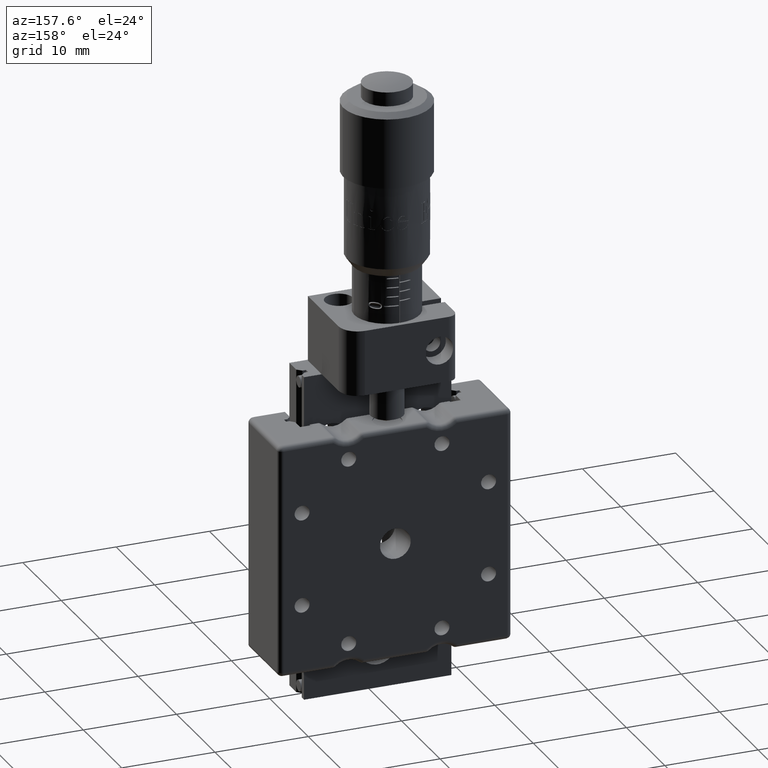
[diagram: clean part render]
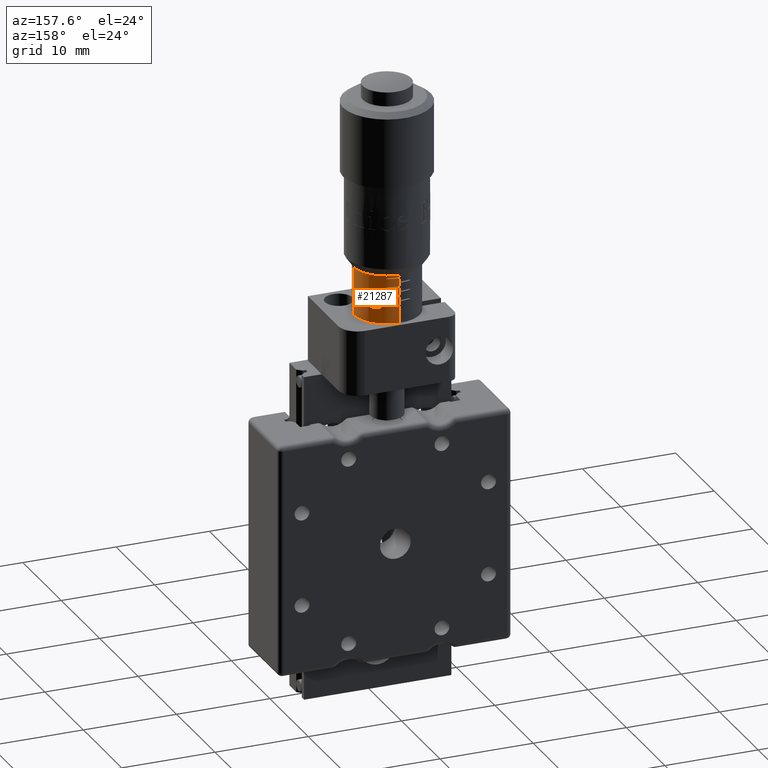
[diagram: same view with one face highlighted and labeled with its STEP entity id]
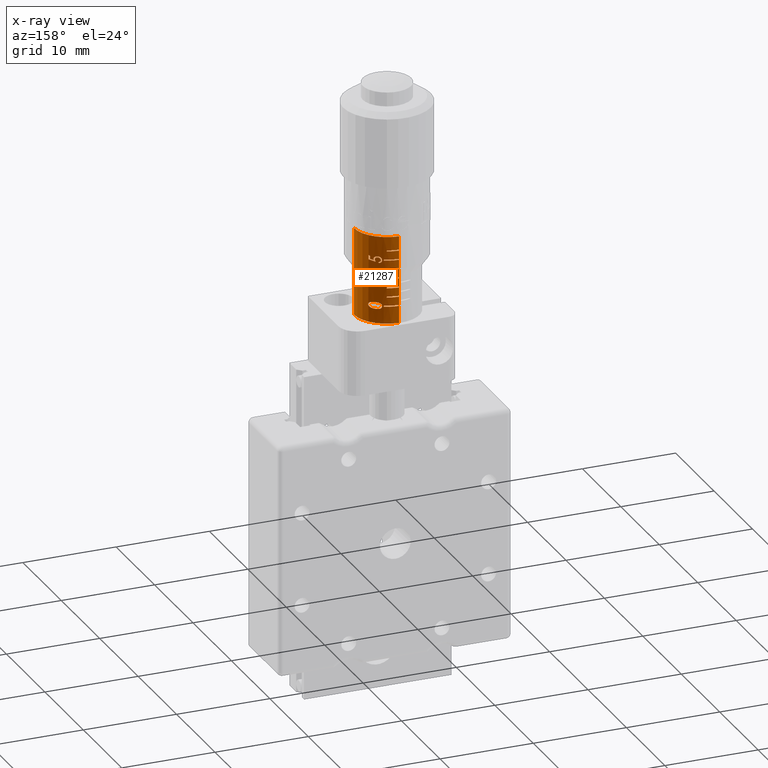
[diagram: x-ray of the same camera — body ghosted, the highlighted face saturated]
A machine part, auxiliary view. The second image highlights one B-rep face of the part: STEP entity #21287.
The next image is the same camera in x-ray: the body ghosted, the highlighted face saturated — about 0% of this face is hidden behind the body in this view.
In plain terms, the highlighted cylindrical surface (edge-blend (fillet) strip) has radius 3.5 mm, axis along (0, 0, 1).
Its self-contained STEP definition (entity closure, byte-faithful):
#167 = EDGE_CURVE ( 'NONE', #5656, #7955, #11918, .T. ) ;
#280 = CARTESIAN_POINT ( 'NONE',  ( 2.008205794582144800, 9.066676334994877400, 31.16144774018862100 ) ) ;
#293 = ORIENTED_EDGE ( 'NONE', *, *, #16254, .T. ) ;
#440 = CARTESIAN_POINT ( 'NONE',  ( 2.306688131590320700, 8.832335439031249200, 26.75982905982906200 ) ) ;
#451 = CARTESIAN_POINT ( 'NONE',  ( 0.1522948242705942400, 9.696685042508081100, 33.90000000000001300 ) ) ;
#482 = CARTESIAN_POINT ( 'NONE',  ( 3.498503860052543300, 6.097673360274848500, 33.90000000000001300 ) ) ;
#552 = CARTESIAN_POINT ( 'NONE',  ( 0.1522948242706004300, 9.696685042508102400, 89.54102306920762500 ) ) ;
#578 = CARTESIAN_POINT ( 'NONE',  ( 2.846237722388081700, 8.236892443811086700, 26.39454293536325100 ) ) ;
#715 = ORIENTED_EDGE ( 'NONE', *, *, #3658, .T. ) ;
#727 = LINE ( 'NONE', #32914, #2870 ) ;
#852 = ORIENTED_EDGE ( 'NONE', *, *, #32653, .T. ) ;
#855 = CARTESIAN_POINT ( 'NONE',  ( 2.351094815196509600, 8.792756742246728800, 31.30596485108722900 ) ) ;
#862 = CARTESIAN_POINT ( 'NONE',  ( 1.762029937466577100, 9.224111522327017800, 31.37715845352564900 ) ) ;
#909 = VERTEX_POINT ( 'NONE', #18438 ) ;
#995 = CARTESIAN_POINT ( 'NONE',  ( 0.1522948242706013400, 9.696685042508081100, 30.45000000000003100 ) ) ;
#1071 = DIRECTION ( 'NONE',  ( 0.02923618277858830400, 0.9995725314435851500, 0.0000000000000000000 ) ) ;
#1073 = CARTESIAN_POINT ( 'NONE',  ( 1.345043838974543200, 9.431231510002961100, 32.45000000000001000 ) ) ;
#1153 = ORIENTED_EDGE ( 'NONE', *, *, #18971, .F. ) ;
#1317 = CARTESIAN_POINT ( 'NONE',  ( 1.762029937466576200, 9.224111522327012500, 26.39454293536325100 ) ) ;
#1495 = ORIENTED_EDGE ( 'NONE', *, *, #20345, .F. ) ;
#1505 = CARTESIAN_POINT ( 'NONE',  ( 2.737309494181643800, 8.382028535163391000, 26.14599216129492700 ) ) ;
#1536 = DIRECTION ( 'NONE',  ( -5.173820016162127900E-018, -1.793466154370806700E-016, -1.000000000000000000 ) ) ;
#1661 = CARTESIAN_POINT ( 'NONE',  ( 1.868729709774607800, 9.159754866691738300, 26.14892436932203900 ) ) ;
#1784 = CARTESIAN_POINT ( 'NONE',  ( 1.762623632399764200, 9.223765599817781400, 26.35881784779101300 ) ) ;
#1807 = VERTEX_POINT ( 'NONE', #451 ) ;
#1838 = EDGE_CURVE ( 'NONE', #16243, #2463, #7617, .T. ) ;
#1872 = CARTESIAN_POINT ( 'NONE',  ( 1.345043838974542700, 9.431231510002961100, 27.45000000000001000 ) ) ;
#2005 = B_SPLINE_CURVE_WITH_KNOTS ( 'NONE', 3,
 ( #34825, #35073, #24219, #18918, #13218, #18809, #18569, #21501, #5252, #26604 ),
 .UNSPECIFIED., .F., .F.,
 ( 4, 2, 2, 2, 4 ),
 ( 0.0000000000000000000, 0.0001306919243144162100, 0.0002613838486288417500, 0.0003920757729432673100, 0.0005227676972576933600 ),
 .UNSPECIFIED. ) ;
#2123 = DIRECTION ( 'NONE',  ( 5.173820016162127900E-018, 1.793466154370806700E-016, 1.000000000000000000 ) ) ;
#2255 = CIRCLE ( 'NONE', #26193, 3.500000000000004900 ) ;
#2277 = DIRECTION ( 'NONE',  ( -0.02923618277858830100, -0.9995725314435851500, 0.0000000000000000000 ) ) ;
#2337 = VECTOR ( 'NONE', #16472, 1000.000000000000000 ) ;
#2366 = CARTESIAN_POINT ( 'NONE',  ( 2.313310693667438600, 8.826678226303396700, 31.56481136203095200 ) ) ;
#2380 = CARTESIAN_POINT ( 'NONE',  ( 2.539283184762475700, 8.613621745478216200, 26.74952653081618700 ) ) ;
#2408 = EDGE_CURVE ( 'NONE', #7398, #6667, #34402, .T. ) ;
#2463 = VERTEX_POINT ( 'NONE', #9571 ) ;
#2526 = ORIENTED_EDGE ( 'NONE', *, *, #34292, .T. ) ;
#2553 = VERTEX_POINT ( 'NONE', #7283 ) ;
#2683 = DIRECTION ( 'NONE',  ( -1.110223024626043800E-016, -1.762506864451433400E-016, -1.000000000000000000 ) ) ;
#2779 = CARTESIAN_POINT ( 'NONE',  ( -4.147034721753750400E-015, 6.199999999999906900, 28.45000000000001000 ) ) ;
#2838 = ORIENTED_EDGE ( 'NONE', *, *, #11041, .F. ) ;
#2870 = VECTOR ( 'NONE', #29237, 1000.000000000000000 ) ;
#2875 = CARTESIAN_POINT ( 'NONE',  ( 0.1522948242706009300, 9.696685042508081100, 26.35000000000003300 ) ) ;
#2928 = CARTESIAN_POINT ( 'NONE',  ( 1.893914413491665000, 9.143336375437437300, 31.26861012473260700 ) ) ;
#2936 = CARTESIAN_POINT ( 'NONE',  ( 1.929414894435835800, 9.120322698794913300, 31.55890652825006600 ) ) ;
#2953 = ORIENTED_EDGE ( 'NONE', *, *, #18004, .F. ) ;
#2956 = CARTESIAN_POINT ( 'NONE',  ( 2.055076097332675800, 9.033136465857500900, 89.54102306920762500 ) ) ;
#3116 = DIRECTION ( 'NONE',  ( 5.173820016162127900E-018, 1.793466154370806700E-016, 1.000000000000000000 ) ) ;
#3250 = CARTESIAN_POINT ( 'NONE',  ( 2.360013844530338000, 8.784634336540596800, 31.39602697649573300 ) ) ;
#3314 = CARTESIAN_POINT ( 'NONE',  ( 1.767467420193004300, 9.220966171238423200, 26.46527695348951400 ) ) ;
#3383 = CARTESIAN_POINT ( 'NONE',  ( 2.355430167394082700, 8.788812223111165200, 31.33592391192004800 ) ) ;
#3497 = ORIENTED_EDGE ( 'NONE', *, *, #167, .T. ) ;
#3511 = CARTESIAN_POINT ( 'NONE',  ( 1.345043838974543200, 9.431231510002975300, 89.54102306920762500 ) ) ;
#3658 = EDGE_CURVE ( 'NONE', #26829, #26624, #23830, .T. ) ;
#3848 = DIRECTION ( 'NONE',  ( -1.110223024626043800E-016, -1.762506864451433400E-016, -1.000000000000000000 ) ) ;
#3973 = ORIENTED_EDGE ( 'NONE', *, *, #31501, .F. ) ;
#4090 = CARTESIAN_POINT ( 'NONE',  ( 1.767847977080006000, 9.220742250107548400, 26.32368784707362500 ) ) ;
#4289 = CARTESIAN_POINT ( 'NONE',  ( 2.795876853704230700, 8.305730411928768900, 26.21836737688728300 ) ) ;
#4425 = DIRECTION ( 'NONE',  ( 0.9995725314435851500, -0.02923618277858830100, 0.0000000000000000000 ) ) ;
#4611 = CARTESIAN_POINT ( 'NONE',  ( 2.127933603052496500, 8.978830434013483200, 31.74626068376069200 ) ) ;
#4613 = EDGE_CURVE ( 'NONE', #19329, #15594, #20282, .T. ) ;
#4677 = DIRECTION ( 'NONE',  ( 0.02923618277858829100, 0.9995725314435850400, 0.0000000000000000000 ) ) ;
#4810 = VERTEX_POINT ( 'NONE', #26143 ) ;
#4868 = DIRECTION ( 'NONE',  ( 5.173820016162127900E-018, 1.793466154370806700E-016, 1.000000000000000000 ) ) ;
#4963 = CARTESIAN_POINT ( 'NONE',  ( -4.305512932683201800E-015, 6.199999999999913100, 26.35000000000001200 ) ) ;
#4965 = LINE ( 'NONE', #552, #17736 ) ;
#5012 = CARTESIAN_POINT ( 'NONE',  ( 2.243669714953604000, 8.886480041583800100, 31.62655983367568900 ) ) ;
#5024 = CARTESIAN_POINT ( 'NONE',  ( 2.426890766856290700, 8.727003121560372300, 26.75835087921676300 ) ) ;
#5116 = EDGE_CURVE ( 'NONE', #15913, #33192, #8341, .T. ) ;
#5155 = VERTEX_POINT ( 'NONE', #578 ) ;
#5252 = CARTESIAN_POINT ( 'NONE',  ( 2.019792989444887200, 9.058729822384293600, 31.05985077628050200 ) ) ;
#5277 = CARTESIAN_POINT ( 'NONE',  ( -4.034004412724408100E-015, 6.199999999999906900, 29.35000000000000900 ) ) ;
#5289 = CARTESIAN_POINT ( 'NONE',  ( 2.715505673721301700, 8.408173212405907600, 31.34556957799146600 ) ) ;
#5354 = EDGE_CURVE ( 'NONE', #28300, #9019, #27132, .T. ) ;
#5402 = VECTOR ( 'NONE', #18151, 1000.000000000000000 ) ;
#5452 = ORIENTED_EDGE ( 'NONE', *, *, #25304, .F. ) ;
#5474 = ORIENTED_EDGE ( 'NONE', *, *, #27792, .T. ) ;
#5568 = CARTESIAN_POINT ( 'NONE',  ( 1.979913582371617400, 9.086324428457075400, 31.60654412243925300 ) ) ;
#5656 = VERTEX_POINT ( 'NONE', #18176 ) ;
#5685 = CARTESIAN_POINT ( 'NONE',  ( 1.876295494086866100, 9.154631586703812800, 31.46102339906445900 ) ) ;
#5686 = AXIS2_PLACEMENT_3D ( 'NONE', #30208, #3116, #10866 ) ;
#5910 = CARTESIAN_POINT ( 'NONE',  ( 0.1522948242706004300, 9.696685042508102400, 89.54102306920762500 ) ) ;
#5940 = CARTESIAN_POINT ( 'NONE',  ( 1.867480682193309000, 9.160532628995039100, 26.64232556434875600 ) ) ;
#5954 = VERTEX_POINT ( 'NONE', #862 ) ;
#6021 = LINE ( 'NONE', #30709, #20913 ) ;
#6037 = EDGE_CURVE ( 'NONE', #25640, #909, #6893, .T. ) ;
#6169 = CIRCLE ( 'NONE', #20797, 3.500000000000004900 ) ;
#6364 = CARTESIAN_POINT ( 'NONE',  ( 2.317583660354148200, 8.822784831037996200, 31.19076574097502100 ) ) ;
#6368 = VERTEX_POINT ( 'NONE', #11218 ) ;
#6374 = CARTESIAN_POINT ( 'NONE',  ( 2.465665257404041600, 8.684048074903190100, 31.41319945245727800 ) ) ;
#6513 = ORIENTED_EDGE ( 'NONE', *, *, #21438, .T. ) ;
#6647 = CARTESIAN_POINT ( 'NONE',  ( 0.1522948242706004300, 9.696685042508102400, 89.54102306920762500 ) ) ;
#6667 = VERTEX_POINT ( 'NONE', #1872 ) ;
#6697 = CARTESIAN_POINT ( 'NONE',  ( 1.345043838974543200, 9.431231510002961100, 30.45000000000000600 ) ) ;
#6739 = CARTESIAN_POINT ( 'NONE',  ( -3.904991722065147200E-015, 6.199999999999914000, 30.45000000000000600 ) ) ;
#6745 = EDGE_CURVE ( 'NONE', #1807, #25729, #34066, .T. ) ;
#6787 = CARTESIAN_POINT ( 'NONE',  ( 2.846237722388081700, 8.236892443811086700, 26.39454293536325100 ) ) ;
#6893 = CIRCLE ( 'NONE', #11053, 3.500000000000005800 ) ;
#6922 = EDGE_CURVE ( 'NONE', #25040, #15913, #28545, .T. ) ;
#6936 = CARTESIAN_POINT ( 'NONE',  ( 1.807386813534474800, 9.197320104032302300, 26.22742523779401900 ) ) ;
#7117 = CARTESIAN_POINT ( 'NONE',  ( 0.1522948242706004300, 9.696685042508102400, 89.54102306920762500 ) ) ;
#7153 = VERTEX_POINT ( 'NONE', #10960 ) ;
#7279 = CIRCLE ( 'NONE', #7680, 3.500000000000004400 ) ;
#7283 = CARTESIAN_POINT ( 'NONE',  ( 2.055076097332674900, 9.033136465857488400, 31.05427350427351400 ) ) ;
#7287 = B_SPLINE_CURVE_WITH_KNOTS ( 'NONE', 3,
 ( #20794, #23035, #28757, #20687, #1505, #4289, #31465, #31124, #17973, #6787 ),
 .UNSPECIFIED., .F., .F.,
 ( 4, 2, 2, 2, 4 ),
 ( 0.0000000000000000000, 0.0004773617258230343100, 0.0007160425887345500000, 0.0008353830201903043800, 0.0009547234516460588600 ),
 .UNSPECIFIED. ) ;
#7292 = CARTESIAN_POINT ( 'NONE',  ( 2.032861209674099400, 9.049896797850680100, 26.06759743981744700 ) ) ;
#7301 = AXIS2_PLACEMENT_3D ( 'NONE', #30196, #30317, #14299 ) ;
#7370 = DIRECTION ( 'NONE',  ( -1.110223024626043800E-016, -1.762506864451433400E-016, -1.000000000000000000 ) ) ;
#7398 = VERTEX_POINT ( 'NONE', #19886 ) ;
#7410 = VECTOR ( 'NONE', #11177, 1000.000000000000000 ) ;
#7505 = DIRECTION ( 'NONE',  ( 1.110223024626043800E-016, 1.762506864451433400E-016, 1.000000000000000000 ) ) ;
#7550 = LINE ( 'NONE', #21571, #21545 ) ;
#7602 = CARTESIAN_POINT ( 'NONE',  ( 1.345043838974543200, 9.431231510002975300, 89.54102306920762500 ) ) ;
#7617 = CIRCLE ( 'NONE', #31985, 3.500000000000004400 ) ;
#7680 = AXIS2_PLACEMENT_3D ( 'NONE', #33542, #11930, #1071 ) ;
#7818 = ORIENTED_EDGE ( 'NONE', *, *, #33032, .F. ) ;
#7955 = VERTEX_POINT ( 'NONE', #3250 ) ;
#7991 = CARTESIAN_POINT ( 'NONE',  ( 2.306688131590320700, 8.832335439031249200, 26.75982905982906200 ) ) ;
#8000 = ORIENTED_EDGE ( 'NONE', *, *, #30388, .T. ) ;
#8108 = B_SPLINE_CURVE_WITH_KNOTS ( 'NONE', 3,
 ( #22177, #19114, #280, #8299, #27291, #32869, #2928, #21932, #30016, #13765 ),
 .UNSPECIFIED., .F., .F.,
 ( 4, 2, 2, 2, 4 ),
 ( 4.336808689942017700E-019, 8.753349801866785300E-005, 0.0001750669960373352700, 0.0002626004940560023100, 0.0003501339920746693500 ),
 .UNSPECIFIED. ) ;
#8299 = CARTESIAN_POINT ( 'NONE',  ( 1.963902773335874900, 9.097207210383233500, 31.18427857591459000 ) ) ;
#8341 = CIRCLE ( 'NONE', #7301, 3.500000000000004400 ) ;
#8456 = ORIENTED_EDGE ( 'NONE', *, *, #11275, .F. ) ;
#8617 = EDGE_CURVE ( 'NONE', #7153, #9070, #25884, .T. ) ;
#8648 = CIRCLE ( 'NONE', #31678, 3.500000000000004900 ) ;
#8673 = CARTESIAN_POINT ( 'NONE',  ( 1.906983696637403900, 9.134918359177591500, 31.52927582148306500 ) ) ;
#8778 = CARTESIAN_POINT ( 'NONE',  ( 2.306688131590320700, 8.832335439031249200, 26.75982905982906200 ) ) ;
#9019 = VERTEX_POINT ( 'NONE', #20051 ) ;
#9063 = ORIENTED_EDGE ( 'NONE', *, *, #9109, .F. ) ;
#9070 = VERTEX_POINT ( 'NONE', #25343 ) ;
#9109 = EDGE_CURVE ( 'NONE', #19549, #17752, #16570, .T. ) ;
#9377 = DIRECTION ( 'NONE',  ( 0.02923618277858829100, 0.9995725314435850400, 0.0000000000000000000 ) ) ;
#9476 = CARTESIAN_POINT ( 'NONE',  ( 2.463131683399432300, 8.686560702869401900, 31.36978382041966300 ) ) ;
#9571 = CARTESIAN_POINT ( 'NONE',  ( 1.617056453708152200, 9.304050325867837800, 26.45000000000001400 ) ) ;
#9576 = CARTESIAN_POINT ( 'NONE',  ( 1.790318634323290400, 9.207478910856311300, 26.25727847669591600 ) ) ;
#9637 = DIRECTION ( 'NONE',  ( -1.110223024625996400E-016, -1.762506864451433600E-016, -1.000000000000000000 ) ) ;
#9655 = FACE_OUTER_BOUND ( 'NONE', #13573, .T. ) ;
#9687 = CARTESIAN_POINT ( 'NONE',  ( 2.199641014403461300, 8.923310626055608100, 26.04271338868366200 ) ) ;
#9719 = CARTESIAN_POINT ( 'NONE',  ( 2.465665257404041600, 8.684048074903190100, 31.41319945245727800 ) ) ;
#9844 = EDGE_CURVE ( 'NONE', #19553, #17581, #8108, .T. ) ;
#9855 = B_SPLINE_CURVE_WITH_KNOTS ( 'NONE', 3,
 ( #33572, #30827, #25348, #20058, #33693, #9476, #12079, #28474, #31058, #6374 ),
 .UNSPECIFIED., .F., .F.,
 ( 4, 3, 3, 4 ),
 ( 0.0000000000000000000, 6.334014363494424300E-005, 9.563846947640001100E-005, 0.0001283808724055202900 ),
 .UNSPECIFIED. ) ;
#10517 = CARTESIAN_POINT ( 'NONE',  ( 2.445667826079123100, 8.703738980900551400, 31.28853999732907100 ) ) ;
#10613 = CARTESIAN_POINT ( 'NONE',  ( 2.813565998937399100, 8.281899530440554700, 26.54347486382898300 ) ) ;
#10623 = CARTESIAN_POINT ( 'NONE',  ( -3.791961413035804100E-015, 6.199999999999914000, 31.35000000000000900 ) ) ;
#10737 = CARTESIAN_POINT ( 'NONE',  ( 2.796032962983993700, 8.305520093645808900, 26.57240932108801000 ) ) ;
#10791 = CARTESIAN_POINT ( 'NONE',  ( 0.1522948242706004300, 9.696685042508102400, 89.54102306920762500 ) ) ;
#10836 = CARTESIAN_POINT ( 'NONE',  ( 2.269366785933558500, 8.864736246023998200, 31.61023979830280300 ) ) ;
#10866 = DIRECTION ( 'NONE',  ( -0.02923618277858474100, -0.9995725314435851500, 0.0000000000000000000 ) ) ;
#10960 = CARTESIAN_POINT ( 'NONE',  ( 2.715505673721298600, 8.408173212405913000, 31.70555555555556300 ) ) ;
#11005 = DIRECTION ( 'NONE',  ( -5.173820016162127900E-018, -1.793466154370806700E-016, -1.000000000000000000 ) ) ;
#11041 = EDGE_CURVE ( 'NONE', #29853, #20670, #33010, .T. ) ;
#11049 = ORIENTED_EDGE ( 'NONE', *, *, #15679, .F. ) ;
#11053 = AXIS2_PLACEMENT_3D ( 'NONE', #23437, #18134, #4677 ) ;
#11128 = VERTEX_POINT ( 'NONE', #8778 ) ;
#11158 = CARTESIAN_POINT ( 'NONE',  ( 1.869791135084605700, 9.158696112678059700, 31.42178275452874600 ) ) ;
#11177 = DIRECTION ( 'NONE',  ( 1.110223024626043800E-016, 1.762506864451433400E-016, 1.000000000000000000 ) ) ;
#11218 = CARTESIAN_POINT ( 'NONE',  ( 2.820141735865203900, 8.272872545438048100, 31.27136752136752700 ) ) ;
#11246 = ORIENTED_EDGE ( 'NONE', *, *, #19720, .F. ) ;
#11251 = ORIENTED_EDGE ( 'NONE', *, *, #22381, .F. ) ;
#11275 = EDGE_CURVE ( 'NONE', #4810, #32138, #15142, .T. ) ;
#11280 = CARTESIAN_POINT ( 'NONE',  ( 2.008974682137672400, 9.066252367630719200, 31.62461843521505100 ) ) ;
#11418 = LINE ( 'NONE', #5910, #12669 ) ;
#11419 = CARTESIAN_POINT ( 'NONE',  ( 1.806962418944149100, 9.197573385748953000, 26.56195718662940000 ) ) ;
#11474 = VECTOR ( 'NONE', #30463, 1000.000000000000000 ) ;
#11488 = CIRCLE ( 'NONE', #29128, 3.500000000000004900 ) ;
#11691 = EDGE_CURVE ( 'NONE', #23879, #24354, #22788, .T. ) ;
#11733 = CARTESIAN_POINT ( 'NONE',  ( 1.617056453708152700, 9.304050325867839500, 31.35000000000000900 ) ) ;
#11829 = DIRECTION ( 'NONE',  ( 1.110223024626043800E-016, 1.762506864451433400E-016, 1.000000000000000000 ) ) ;
#11866 = DIRECTION ( 'NONE',  ( 5.173820016162127900E-018, 1.793466154370806700E-016, 1.000000000000000000 ) ) ;
#11918 = B_SPLINE_CURVE_WITH_KNOTS ( 'NONE', 3,
 ( #32318, #16079, #27090, #5012, #10836, #2366, #18683, #34951, #29598, #13444 ),
 .UNSPECIFIED., .F., .F.,
 ( 4, 2, 2, 2, 4 ),
 ( 0.0000000000000000000, 0.0001089139476068140400, 0.0002178278952136280800, 0.0003267418428204420900, 0.0004356557904272561600 ),
 .UNSPECIFIED. ) ;
#11930 = DIRECTION ( 'NONE',  ( -5.173820016162127900E-018, -1.793466154370806700E-016, -1.000000000000000000 ) ) ;
#11986 = ORIENTED_EDGE ( 'NONE', *, *, #16228, .F. ) ;
#12079 = CARTESIAN_POINT ( 'NONE',  ( 2.464089450984867600, 8.685611228157899400, 31.38047901811874500 ) ) ;
#12162 = CARTESIAN_POINT ( 'NONE',  ( 2.307101722523928500, 8.831972956154126900, 31.16282051282052000 ) ) ;
#12466 = ORIENTED_EDGE ( 'NONE', *, *, #33480, .F. ) ;
#12509 = AXIS2_PLACEMENT_3D ( 'NONE', #26215, #4868, #15463 ) ;
#12595 = CARTESIAN_POINT ( 'NONE',  ( 2.322578692558734800, 8.818689692279491500, 31.69518450396949300 ) ) ;
#12669 = VECTOR ( 'NONE', #13887, 1000.000000000000000 ) ;
#12833 = CARTESIAN_POINT ( 'NONE',  ( 2.387200021111370400, 8.759918660189143200, 31.63930934550702300 ) ) ;
#12875 = CARTESIAN_POINT ( 'NONE',  ( 2.644378029343659200E-015, 6.199999999999918500, 89.54102306920762500 ) ) ;
#12895 = AXIS2_PLACEMENT_3D ( 'NONE', #24401, #32847, #32604 ) ;
#13218 = CARTESIAN_POINT ( 'NONE',  ( 1.826799477054014100, 9.185619137860667700, 31.17614053805913000 ) ) ;
#13344 = CARTESIAN_POINT ( 'NONE',  ( 2.737840062013715800, 8.381351089166299700, 26.64592013506668200 ) ) ;
#13444 = CARTESIAN_POINT ( 'NONE',  ( 2.360013844530338000, 8.784634336540596800, 31.39602697649573300 ) ) ;
#13503 = ORIENTED_EDGE ( 'NONE', *, *, #11691, .F. ) ;
#13561 = ORIENTED_EDGE ( 'NONE', *, *, #5354, .F. ) ;
#13573 = EDGE_LOOP ( 'NONE', ( #11986, #18447, #3973, #31195, #20193, #22517, #21177, #13503, #5452, #24691, #25679, #23099, #9063, #1153, #8456, #11049, #7818, #33870, #11246, #13561, #35053, #19661, #2838, #2953, #11251, #21332, #30618, #12466, #1495, #20580, #25112, #852 ) ) ;
#13588 = B_SPLINE_CURVE_WITH_KNOTS ( 'NONE', 3,
 ( #25229, #14229, #19699, #3383, #855, #19929, #22630, #27768, #6364, #25338 ),
 .UNSPECIFIED., .F., .F.,
 ( 4, 3, 3, 4 ),
 ( 0.0000000000000000000, 6.042220786825644000E-005, 0.0001520492990752370900, 0.0002456518893403539100 ),
 .UNSPECIFIED. ) ;
#13765 = CARTESIAN_POINT ( 'NONE',  ( 1.868729656467125000, 9.159366396889666400, 31.38267060630342400 ) ) ;
#13774 = ORIENTED_EDGE ( 'NONE', *, *, #9844, .T. ) ;
#13887 = DIRECTION ( 'NONE',  ( -1.110223024626043800E-016, -1.762506864451433400E-016, -1.000000000000000000 ) ) ;
#13986 = CARTESIAN_POINT ( 'NONE',  ( 1.868729656467125000, 9.159366396889666400, 31.38267060630342400 ) ) ;
#14154 = EDGE_CURVE ( 'NONE', #34834, #26829, #9855, .T. ) ;
#14229 = CARTESIAN_POINT ( 'NONE',  ( 2.359594008925501600, 8.785017685870068100, 31.37589426614145100 ) ) ;
#14243 = CARTESIAN_POINT ( 'NONE',  ( 2.085254022110413900, 9.011513001952570400, 31.74524271249683200 ) ) ;
#14299 = DIRECTION ( 'NONE',  ( 0.02923618277858830400, 0.9995725314435851500, 0.0000000000000000000 ) ) ;
#14409 = VERTEX_POINT ( 'NONE', #2875 ) ;
#14460 = DIRECTION ( 'NONE',  ( 1.110223024626043800E-016, 1.762506864451433400E-016, 1.000000000000000000 ) ) ;
#14710 = CARTESIAN_POINT ( 'NONE',  ( 2.127933603052496500, 8.978830434013483200, 31.74626068376069200 ) ) ;
#14719 = B_SPLINE_CURVE_WITH_KNOTS ( 'NONE', 3,
 ( #440, #19751, #19509, #33142, #5940, #11419, #16916, #3314, #30646, #22563 ),
 .UNSPECIFIED., .F., .F.,
 ( 4, 2, 2, 2, 4 ),
 ( 0.0000000000000000000, 0.0004252463702309748400, 0.0006378695553464604400, 0.0007441811479042033300, 0.0008504927404619463200 ),
 .UNSPECIFIED. ) ;
#14856 = CARTESIAN_POINT ( 'NONE',  ( 0.1522948242706014500, 9.696685042508091700, 31.45000000000000600 ) ) ;
#14930 = AXIS2_PLACEMENT_3D ( 'NONE', #23369, #9637, #31339 ) ;
#15033 = DIRECTION ( 'NONE',  ( 0.02923618277858829100, 0.9995725314435850400, 0.0000000000000000000 ) ) ;
#15039 = CARTESIAN_POINT ( 'NONE',  ( 2.253769184190486600, 8.878707761529927500, 26.04102639832928300 ) ) ;
#15122 = EDGE_CURVE ( 'NONE', #22666, #14409, #2255, .T. ) ;
#15142 = LINE ( 'NONE', #7117, #32979 ) ;
#15336 = CARTESIAN_POINT ( 'NONE',  ( 2.286572773685351800, 8.850299904490521300, 31.71519182577753400 ) ) ;
#15463 = DIRECTION ( 'NONE',  ( -0.02923618277860960700, -0.9995725314435846000, 0.0000000000000000000 ) ) ;
#15577 = CARTESIAN_POINT ( 'NONE',  ( 2.055076097332674500, 9.033136465857486600, 31.14925213675214300 ) ) ;
#15594 = VERTEX_POINT ( 'NONE', #15751 ) ;
#15679 = EDGE_CURVE ( 'NONE', #16660, #4810, #8648, .T. ) ;
#15740 = CARTESIAN_POINT ( 'NONE',  ( 2.690346924578927500, 8.440070463417180600, 26.67704334147830300 ) ) ;
#15751 = CARTESIAN_POINT ( 'NONE',  ( 0.1522948242706008400, 9.696685042508081100, 24.50000000000003200 ) ) ;
#15868 = CARTESIAN_POINT ( 'NONE',  ( 2.838849541331980300, 8.247289077513094900, 26.47503215875737900 ) ) ;
#15902 = AXIS2_PLACEMENT_3D ( 'NONE', #17537, #1536, #15033 ) ;
#15913 = VERTEX_POINT ( 'NONE', #14856 ) ;
#15932 = DIRECTION ( 'NONE',  ( -1.110223024626043800E-016, -1.762506864451433400E-016, -1.000000000000000000 ) ) ;
#15957 = AXIS2_PLACEMENT_3D ( 'NONE', #22627, #11829, #30708 ) ;
#15994 = VERTEX_POINT ( 'NONE', #34313 ) ;
#16024 = CIRCLE ( 'NONE', #14930, 3.500000000000004900 ) ;
#16038 = CARTESIAN_POINT ( 'NONE',  ( 0.1522948242706016200, 9.696685042508091700, 32.45000000000001000 ) ) ;
#16070 = CYLINDRICAL_SURFACE ( 'NONE', #31921, 3.500000000000004900 ) ;
#16079 = CARTESIAN_POINT ( 'NONE',  ( 2.161022490076867100, 8.953421961305446400, 31.65060468727639500 ) ) ;
#16097 = DIRECTION ( 'NONE',  ( -0.02923618277858830100, -0.9995725314435851500, 0.0000000000000000000 ) ) ;
#16228 = EDGE_CURVE ( 'NONE', #19329, #21088, #6021, .T. ) ;
#16243 = VERTEX_POINT ( 'NONE', #27997 ) ;
#16254 = EDGE_CURVE ( 'NONE', #7955, #32228, #13588, .T. ) ;
#16392 = CARTESIAN_POINT ( 'NONE',  ( 2.498060110213243600, 8.664585056465313100, 31.20297857276168700 ) ) ;
#16423 = EDGE_CURVE ( 'NONE', #9070, #34834, #29920, .T. ) ;
#16440 = LINE ( 'NONE', #21534, #2337 ) ;
#16472 = DIRECTION ( 'NONE',  ( -1.110223024626043800E-016, -1.762506864451433400E-016, -1.000000000000000000 ) ) ;
#16523 = CIRCLE ( 'NONE', #32070, 3.500000000000005800 ) ;
#16570 = LINE ( 'NONE', #3511, #33963 ) ;
#16660 = VERTEX_POINT ( 'NONE', #31959 ) ;
#16689 = CARTESIAN_POINT ( 'NONE',  ( -4.304995550681585600E-015, 6.199999999999913100, 26.45000000000001400 ) ) ;
#16916 = CARTESIAN_POINT ( 'NONE',  ( 1.790426963120115300, 9.207415664477249400, 26.53201179823219700 ) ) ;
#16976 = DIRECTION ( 'NONE',  ( -1.110223024626043800E-016, -1.762506864451433400E-016, -1.000000000000000000 ) ) ;
#17031 = DIRECTION ( 'NONE',  ( -5.173820016162127900E-018, -1.793466154370806700E-016, -1.000000000000000000 ) ) ;
#17047 = ORIENTED_EDGE ( 'NONE', *, *, #20434, .T. ) ;
#17224 = LINE ( 'NONE', #22428, #23542 ) ;
#17484 = ORIENTED_EDGE ( 'NONE', *, *, #8617, .T. ) ;
#17537 = CARTESIAN_POINT ( 'NONE',  ( -4.260582412784709600E-015, 6.199999999999906900, 27.45000000000001000 ) ) ;
#17581 = VERTEX_POINT ( 'NONE', #13986 ) ;
#17710 = DIRECTION ( 'NONE',  ( -1.110223024626043800E-016, -1.762506864451433400E-016, -1.000000000000000000 ) ) ;
#17736 = VECTOR ( 'NONE', #28176, 1000.000000000000000 ) ;
#17750 = CARTESIAN_POINT ( 'NONE',  ( 1.617056453708152700, 9.304050325867839500, 31.45000000000002100 ) ) ;
#17752 = VERTEX_POINT ( 'NONE', #34038 ) ;
#17973 = CARTESIAN_POINT ( 'NONE',  ( 2.845583569626297200, 8.237806519698612100, 26.35402758126750900 ) ) ;
#18004 = EDGE_CURVE ( 'NONE', #28263, #29853, #11488, .T. ) ;
#18115 = CARTESIAN_POINT ( 'NONE',  ( 2.845694838462560200, 8.237651038950659200, 26.43526772608972300 ) ) ;
#18116 = CARTESIAN_POINT ( 'NONE',  ( 2.306688131590320700, 8.832335439031249200, 26.04070512820513600 ) ) ;
#18134 = DIRECTION ( 'NONE',  ( -5.173820016162127900E-018, -1.793466154370806700E-016, -1.000000000000000000 ) ) ;
#18151 = DIRECTION ( 'NONE',  ( -1.110223024626043800E-016, -1.762506864451433400E-016, -1.000000000000000000 ) ) ;
#18176 = CARTESIAN_POINT ( 'NONE',  ( 2.131875028825941200, 8.975807785396520800, 31.65128205128205600 ) ) ;
#18188 = CARTESIAN_POINT ( 'NONE',  ( 1.345043838974542700, 9.431231510002961100, 28.45000000000001000 ) ) ;
#18307 = CARTESIAN_POINT ( 'NONE',  ( 2.169175362835377400, 8.947248900496067100, 31.74535772971910700 ) ) ;
#18321 = CARTESIAN_POINT ( 'NONE',  ( 0.1522948242706004300, 9.696685042508102400, 89.54102306920762500 ) ) ;
#18438 = CARTESIAN_POINT ( 'NONE',  ( 1.345043838974542700, 9.431231510002961100, 29.45000000000000300 ) ) ;
#18447 = ORIENTED_EDGE ( 'NONE', *, *, #4613, .T. ) ;
#18525 = CARTESIAN_POINT ( 'NONE',  ( 2.820141735865204300, 8.272872545438065800, 89.54102306920762500 ) ) ;
#18569 = CARTESIAN_POINT ( 'NONE',  ( 1.916179710141867800, 9.129150588191199800, 31.09861490815811200 ) ) ;
#18683 = CARTESIAN_POINT ( 'NONE',  ( 2.331339723015813700, 8.810576289395852400, 31.53652615651754600 ) ) ;
#18809 = CARTESIAN_POINT ( 'NONE',  ( 1.883504948186097500, 9.150174075522180300, 31.12051005041929800 ) ) ;
#18878 = CARTESIAN_POINT ( 'NONE',  ( 0.1522948242706012300, 9.696685042508081100, 29.45000000000003100 ) ) ;
#18918 = CARTESIAN_POINT ( 'NONE',  ( 1.802356646187391200, 9.200312804320345700, 31.21075688171362800 ) ) ;
#18971 = EDGE_CURVE ( 'NONE', #32138, #19549, #19956, .T. ) ;
#18994 = CARTESIAN_POINT ( 'NONE',  ( 2.307101722523928500, 8.831972956154126900, 31.16282051282052000 ) ) ;
#19113 = CARTESIAN_POINT ( 'NONE',  ( 2.669747941644504700, 8.477483203642936600, 31.23930361568459100 ) ) ;
#19114 = CARTESIAN_POINT ( 'NONE',  ( 2.031587057911114600, 9.050174742709407000, 31.15480016308616800 ) ) ;
#19329 = VERTEX_POINT ( 'NONE', #27570 ) ;
#19481 = FACE_BOUND ( 'NONE', #24429, .T. ) ;
#19509 = CARTESIAN_POINT ( 'NONE',  ( 2.084660219546536900, 9.014514170056905600, 26.75340539143038800 ) ) ;
#19534 = CARTESIAN_POINT ( 'NONE',  ( 0.1522948242706016200, 9.696685042508091700, 32.35000000000000900 ) ) ;
#19549 = VERTEX_POINT ( 'NONE', #18188 ) ;
#19553 = VERTEX_POINT ( 'NONE', #15577 ) ;
#19661 = ORIENTED_EDGE ( 'NONE', *, *, #31095, .F. ) ;
#19699 = CARTESIAN_POINT ( 'NONE',  ( 2.358290490556627100, 8.786209758782000300, 31.35568991747691200 ) ) ;
#19720 = EDGE_CURVE ( 'NONE', #9019, #25640, #11418, .T. ) ;
#19751 = CARTESIAN_POINT ( 'NONE',  ( 2.199874524498788300, 8.925935090548707200, 26.75848073805216000 ) ) ;
#19828 = CARTESIAN_POINT ( 'NONE',  ( 1.762512999236756300, 9.223830061377539000, 31.43136103463787400 ) ) ;
#19886 = CARTESIAN_POINT ( 'NONE',  ( 0.1522948242706010100, 9.696685042508081100, 27.45000000000003500 ) ) ;
#19929 = CARTESIAN_POINT ( 'NONE',  ( 2.344231259801571100, 8.798980595058303300, 31.27662755037952300 ) ) ;
#19956 = CIRCLE ( 'NONE', #27805, 3.500000000000005800 ) ;
#20051 = CARTESIAN_POINT ( 'NONE',  ( 0.1522948242706013400, 9.696685042508081100, 30.35000000000003300 ) ) ;
#20058 = CARTESIAN_POINT ( 'NONE',  ( 2.459774683998956900, 8.689881222861316700, 31.34871418529576600 ) ) ;
#20060 = CARTESIAN_POINT ( 'NONE',  ( 1.957826790514729300, 9.101649618928171000, 31.71073859408096100 ) ) ;
#20081 = ORIENTED_EDGE ( 'NONE', *, *, #24179, .T. ) ;
#20084 = DIRECTION ( 'NONE',  ( -0.02923618277858830100, -0.9995725314435851500, 0.0000000000000000000 ) ) ;
#20193 = ORIENTED_EDGE ( 'NONE', *, *, #31843, .F. ) ;
#20282 = CIRCLE ( 'NONE', #15957, 3.500000000000004900 ) ;
#20345 = EDGE_CURVE ( 'NONE', #23204, #22766, #7550, .T. ) ;
#20434 = EDGE_CURVE ( 'NONE', #32228, #6368, #33177, .T. ) ;
#20479 = ORIENTED_EDGE ( 'NONE', *, *, #26037, .T. ) ;
#20580 = ORIENTED_EDGE ( 'NONE', *, *, #27176, .F. ) ;
#20670 = VERTEX_POINT ( 'NONE', #995 ) ;
#20687 = CARTESIAN_POINT ( 'NONE',  ( 2.689856557182636300, 8.440627838582184200, 26.11541468712016100 ) ) ;
#20781 = CARTESIAN_POINT ( 'NONE',  ( 2.415895396434322600, 8.732627896685837500, 31.60391134316514800 ) ) ;
#20788 = CARTESIAN_POINT ( 'NONE',  ( 1.617056453708159100, 9.304050325867850200, 89.54102306920762500 ) ) ;
#20794 = CARTESIAN_POINT ( 'NONE',  ( 2.306688131590320700, 8.832335439031249200, 26.04070512820513600 ) ) ;
#20797 = AXIS2_PLACEMENT_3D ( 'NONE', #28162, #11866, #20084 ) ;
#20903 = CARTESIAN_POINT ( 'NONE',  ( 2.209860445367390900, 8.914594158452089800, 31.74098659734549700 ) ) ;
#20913 = VECTOR ( 'NONE', #14460, 1000.000000000000000 ) ;
#21018 = DIRECTION ( 'NONE',  ( -1.110223024626043800E-016, -1.762506864451433400E-016, -1.000000000000000000 ) ) ;
#21088 = VERTEX_POINT ( 'NONE', #482 ) ;
#21177 = ORIENTED_EDGE ( 'NONE', *, *, #27987, .F. ) ;
#21184 = ORIENTED_EDGE ( 'NONE', *, *, #26457, .T. ) ;
#21287 = ADVANCED_FACE ( 'NONE', ( #9655, #28793, #19481 ), #16070, .T. ) ;
#21332 = ORIENTED_EDGE ( 'NONE', *, *, #5116, .F. ) ;
#21438 = EDGE_CURVE ( 'NONE', #5954, #2553, #2005, .T. ) ;
#21501 = CARTESIAN_POINT ( 'NONE',  ( 1.984005559481222700, 9.083641758230006900, 31.06800777897396100 ) ) ;
#21534 = CARTESIAN_POINT ( 'NONE',  ( 1.345043838974543200, 9.431231510002975300, 89.54102306920762500 ) ) ;
#21545 = VECTOR ( 'NONE', #2683, 1000.000000000000000 ) ;
#21571 = CARTESIAN_POINT ( 'NONE',  ( 1.345043838974543600, 9.431231510002975300, 89.54102306920762500 ) ) ;
#21787 = VECTOR ( 'NONE', #7370, 1000.000000000000000 ) ;
#21932 = CARTESIAN_POINT ( 'NONE',  ( 1.873911991354573000, 9.156111410833867500, 31.32302804056231300 ) ) ;
#22177 = CARTESIAN_POINT ( 'NONE',  ( 2.055076097332674500, 9.033136465857486600, 31.14925213675214300 ) ) ;
#22381 = EDGE_CURVE ( 'NONE', #33192, #28263, #28764, .T. ) ;
#22428 = CARTESIAN_POINT ( 'NONE',  ( 1.345043838974543600, 9.431231510002975300, 89.54102306920762500 ) ) ;
#22517 = ORIENTED_EDGE ( 'NONE', *, *, #1838, .F. ) ;
#22535 = AXIS2_PLACEMENT_3D ( 'NONE', #26971, #2123, #29480 ) ;
#22563 = CARTESIAN_POINT ( 'NONE',  ( 1.762029937466576200, 9.224111522327012500, 26.39454293536325100 ) ) ;
#22627 = CARTESIAN_POINT ( 'NONE',  ( -4.573873327123079200E-015, 6.199999999999906000, 24.50000000000000700 ) ) ;
#22630 = CARTESIAN_POINT ( 'NONE',  ( 2.336062634847833900, 8.806302239969573600, 31.24813953679431600 ) ) ;
#22666 = VERTEX_POINT ( 'NONE', #28150 ) ;
#22711 = LINE ( 'NONE', #2956, #7410 ) ;
#22725 = CARTESIAN_POINT ( 'NONE',  ( 0.1522948242706011200, 9.696685042508081100, 28.45000000000003500 ) ) ;
#22766 = VERTEX_POINT ( 'NONE', #33830 ) ;
#22788 = CIRCLE ( 'NONE', #5686, 3.500000000000005300 ) ;
#23008 = LINE ( 'NONE', #18525, #29408 ) ;
#23035 = CARTESIAN_POINT ( 'NONE',  ( 2.426656190761196500, 8.727208678149581900, 26.04142428905617400 ) ) ;
#23099 = ORIENTED_EDGE ( 'NONE', *, *, #23574, .F. ) ;
#23204 = VERTEX_POINT ( 'NONE', #1073 ) ;
#23214 = VECTOR ( 'NONE', #17710, 1000.000000000000000 ) ;
#23256 = VERTEX_POINT ( 'NONE', #6697 ) ;
#23369 = CARTESIAN_POINT ( 'NONE',  ( -3.522781112084283500E-015, 6.199999999999907800, 33.90000000000001300 ) ) ;
#23437 = CARTESIAN_POINT ( 'NONE',  ( -4.033487030722791200E-015, 6.199999999999906900, 29.45000000000000300 ) ) ;
#23475 = CARTESIAN_POINT ( 'NONE',  ( 1.868729656467125000, 9.159366396889666400, 31.38267060630342400 ) ) ;
#23534 = CARTESIAN_POINT ( 'NONE',  ( 1.922958685182677700, 9.125178003349146700, 26.11470356199606300 ) ) ;
#23542 = VECTOR ( 'NONE', #27916, 1000.000000000000000 ) ;
#23574 = EDGE_CURVE ( 'NONE', #17752, #25030, #6169, .T. ) ;
#23761 = VERTEX_POINT ( 'NONE', #24352 ) ;
#23830 = B_SPLINE_CURVE_WITH_KNOTS ( 'NONE', 3,
 ( #31451, #26208, #26446, #20781, #12833, #12595, #15336, #20903, #18307, #4611 ),
 .UNSPECIFIED., .F., .F.,
 ( 4, 2, 2, 2, 4 ),
 ( 6.992893892674702500E-018, 0.0001546484160782554700, 0.0003092968321565039400, 0.0004639452482347524200, 0.0006185936643130008400 ),
 .UNSPECIFIED. ) ;
#23879 = VERTEX_POINT ( 'NONE', #24941 ) ;
#23940 = DIRECTION ( 'NONE',  ( -0.02923618277858830100, -0.9995725314435851500, 0.0000000000000000000 ) ) ;
#24053 = DIRECTION ( 'NONE',  ( 5.173820016162127900E-018, 1.793466154370806700E-016, 1.000000000000000000 ) ) ;
#24179 = EDGE_CURVE ( 'NONE', #2553, #19553, #22711, .T. ) ;
#24219 = CARTESIAN_POINT ( 'NONE',  ( 1.769432086043334800, 9.219847098232758500, 31.28903806594784200 ) ) ;
#24352 = CARTESIAN_POINT ( 'NONE',  ( 2.820141735865203900, 8.272872545438046300, 31.70555555555556300 ) ) ;
#24354 = VERTEX_POINT ( 'NONE', #25848 ) ;
#24401 = CARTESIAN_POINT ( 'NONE',  ( -3.720454807385230500E-015, 6.199999999999907800, 32.35000000000000900 ) ) ;
#24429 = EDGE_LOOP ( 'NONE', ( #17047, #21184, #2526, #17484, #32652, #24768, #715, #20479, #6513, #20081, #13774, #33968, #3497, #293 ) ) ;
#24686 = B_SPLINE_CURVE_WITH_KNOTS ( 'NONE', 3,
 ( #23475, #11158, #5685, #8673, #2936, #5568, #11280, #30144, #27798, #27544 ),
 .UNSPECIFIED., .F., .F.,
 ( 4, 2, 2, 2, 4 ),
 ( 0.0000000000000000000, 0.0001162817139756748700, 0.0002325634279513497300, 0.0003488451419270245700, 0.0004651268559026994700 ),
 .UNSPECIFIED. ) ;
#24691 = ORIENTED_EDGE ( 'NONE', *, *, #2408, .F. ) ;
#24715 = LINE ( 'NONE', #10791, #31099 ) ;
#24768 = ORIENTED_EDGE ( 'NONE', *, *, #14154, .T. ) ;
#24900 = CARTESIAN_POINT ( 'NONE',  ( 2.127933603052496500, 8.978830434013483200, 31.74626068376069200 ) ) ;
#24941 = CARTESIAN_POINT ( 'NONE',  ( 1.345043838974542700, 9.431231510002962900, 27.35000000000000900 ) ) ;
#25030 = VERTEX_POINT ( 'NONE', #32103 ) ;
#25040 = VERTEX_POINT ( 'NONE', #19534 ) ;
#25112 = ORIENTED_EDGE ( 'NONE', *, *, #6745, .F. ) ;
#25229 = CARTESIAN_POINT ( 'NONE',  ( 2.360013844530338000, 8.784634336540596800, 31.39602697649573300 ) ) ;
#25247 = EDGE_CURVE ( 'NONE', #33070, #5155, #7287, .T. ) ;
#25304 = EDGE_CURVE ( 'NONE', #6667, #23879, #29023, .T. ) ;
#25338 = CARTESIAN_POINT ( 'NONE',  ( 2.307101722523928500, 8.831972956154126900, 31.16282051282052000 ) ) ;
#25343 = CARTESIAN_POINT ( 'NONE',  ( 2.715505673721301700, 8.408173212405907600, 31.34556957799146600 ) ) ;
#25348 = CARTESIAN_POINT ( 'NONE',  ( 2.456157136069852000, 8.693455029006148700, 31.32822233025996900 ) ) ;
#25473 = CARTESIAN_POINT ( 'NONE',  ( 1.916559832352621000, 9.128945331201022000, 31.68765885139625400 ) ) ;
#25623 = CARTESIAN_POINT ( 'NONE',  ( 2.715505673721302100, 8.408173212405923600, 89.54102306920762500 ) ) ;
#25640 = VERTEX_POINT ( 'NONE', #18878 ) ;
#25679 = ORIENTED_EDGE ( 'NONE', *, *, #26226, .F. ) ;
#25729 = VERTEX_POINT ( 'NONE', #16038 ) ;
#25749 = DIRECTION ( 'NONE',  ( -1.110223024626043800E-016, -1.762506864451433400E-016, -1.000000000000000000 ) ) ;
#25848 = CARTESIAN_POINT ( 'NONE',  ( 0.1522948242706010100, 9.696685042508081100, 27.35000000000003300 ) ) ;
#25884 = LINE ( 'NONE', #25623, #11474 ) ;
#25914 = CARTESIAN_POINT ( 'NONE',  ( 2.089667197056733100, 9.008581913311111600, 26.05655381209107100 ) ) ;
#26037 = EDGE_CURVE ( 'NONE', #26624, #5954, #33195, .T. ) ;
#26143 = CARTESIAN_POINT ( 'NONE',  ( 0.1522948242706012300, 9.696685042508081100, 29.35000000000003300 ) ) ;
#26193 = AXIS2_PLACEMENT_3D ( 'NONE', #4963, #24053, #23940 ) ;
#26194 = DIRECTION ( 'NONE',  ( 1.110223024626043800E-016, 1.762506864451433400E-016, 1.000000000000000000 ) ) ;
#26208 = CARTESIAN_POINT ( 'NONE',  ( 2.464606495257937600, 8.685099001842115000, 31.46524276753658700 ) ) ;
#26215 = CARTESIAN_POINT ( 'NONE',  ( -3.777975982458599200E-015, 6.199999999999907800, 31.70555555555556300 ) ) ;
#26226 = EDGE_CURVE ( 'NONE', #25030, #7398, #4965, .T. ) ;
#26446 = CARTESIAN_POINT ( 'NONE',  ( 2.455351093471760800, 8.694394843919246400, 31.51691226971557200 ) ) ;
#26457 = EDGE_CURVE ( 'NONE', #6368, #23761, #23008, .T. ) ;
#26535 = EDGE_CURVE ( 'NONE', #17581, #5656, #24686, .T. ) ;
#26604 = CARTESIAN_POINT ( 'NONE',  ( 2.055076097332674900, 9.033136465857488400, 31.05427350427351400 ) ) ;
#26624 = VERTEX_POINT ( 'NONE', #24900 ) ;
#26640 = LINE ( 'NONE', #28819, #5402 ) ;
#26829 = VERTEX_POINT ( 'NONE', #9719 ) ;
#26971 = CARTESIAN_POINT ( 'NONE',  ( -3.932602571820462600E-015, 6.199999999999914000, 30.35000000000000900 ) ) ;
#27090 = CARTESIAN_POINT ( 'NONE',  ( 2.189412078834627600, 8.930879629841108200, 31.64712329643387500 ) ) ;
#27126 = CARTESIAN_POINT ( 'NONE',  ( 2.631247812244746200, 8.511789495589571400, 31.32769404889609200 ) ) ;
#27132 = CIRCLE ( 'NONE', #22535, 3.500000000000004900 ) ;
#27176 = EDGE_CURVE ( 'NONE', #25729, #23204, #7279, .T. ) ;
#27291 = CARTESIAN_POINT ( 'NONE',  ( 1.942605865523996400, 9.111479254534685900, 31.20101501345831000 ) ) ;
#27416 = B_SPLINE_CURVE_WITH_KNOTS ( 'NONE', 3,
 ( #1317, #1784, #4090, #9576, #6936, #1661, #23534, #7292, #25914, #9687, #15039, #18116 ),
 .UNSPECIFIED., .F., .F.,
 ( 4, 2, 2, 2, 2, 4 ),
 ( 0.0000000000000000000, 0.0001059537137296285200, 0.0002119074274592570400, 0.0004238148549185041600, 0.0006357222823777514100, 0.0008476297098369985600 ),
 .UNSPECIFIED. ) ;
#27544 = CARTESIAN_POINT ( 'NONE',  ( 2.131875028825941200, 8.975807785396520800, 31.65128205128205600 ) ) ;
#27570 = CARTESIAN_POINT ( 'NONE',  ( 3.498503860052542900, 6.097673360274848500, 24.50000000000000700 ) ) ;
#27768 = CARTESIAN_POINT ( 'NONE',  ( 2.327706267601259400, 8.813792160742545800, 31.21899677347838100 ) ) ;
#27788 = CARTESIAN_POINT ( 'NONE',  ( 2.042415203876884400, 9.042744516775252700, 31.73980301214999500 ) ) ;
#27792 = EDGE_CURVE ( 'NONE', #11128, #15994, #14719, .T. ) ;
#27798 = CARTESIAN_POINT ( 'NONE',  ( 2.100943949984409800, 8.999563462912741200, 31.65042732183026400 ) ) ;
#27805 = AXIS2_PLACEMENT_3D ( 'NONE', #2779, #11005, #30001 ) ;
#27849 = CIRCLE ( 'NONE', #12509, 3.500000000000004900 ) ;
#27916 = DIRECTION ( 'NONE',  ( -1.110223024626043800E-016, -1.762506864451433400E-016, -1.000000000000000000 ) ) ;
#27987 = EDGE_CURVE ( 'NONE', #24354, #16243, #24715, .T. ) ;
#27997 = CARTESIAN_POINT ( 'NONE',  ( 0.1522948242706009300, 9.696685042508081100, 26.45000000000003100 ) ) ;
#28150 = CARTESIAN_POINT ( 'NONE',  ( 1.617056453708152200, 9.304050325867837800, 26.35000000000001200 ) ) ;
#28162 = CARTESIAN_POINT ( 'NONE',  ( -4.147552103755367300E-015, 6.199999999999906900, 28.35000000000000900 ) ) ;
#28176 = DIRECTION ( 'NONE',  ( -1.110223024626043800E-016, -1.762506864451433400E-016, -1.000000000000000000 ) ) ;
#28223 = CARTESIAN_POINT ( 'NONE',  ( 0.1522948242706004300, 9.696685042508102400, 89.54102306920762500 ) ) ;
#28263 = VERTEX_POINT ( 'NONE', #11733 ) ;
#28300 = VERTEX_POINT ( 'NONE', #31172 ) ;
#28474 = CARTESIAN_POINT ( 'NONE',  ( 2.465060722070984600, 8.684648366866385400, 31.39132500668987500 ) ) ;
#28545 = LINE ( 'NONE', #28223, #34911 ) ;
#28757 = CARTESIAN_POINT ( 'NONE',  ( 2.540621218968835700, 8.612096486199430200, 26.04863651987254900 ) ) ;
#28764 = LINE ( 'NONE', #20788, #32565 ) ;
#28793 = FACE_BOUND ( 'NONE', #29082, .T. ) ;
#28819 = CARTESIAN_POINT ( 'NONE',  ( 1.617056453708159100, 9.304050325867850200, 89.54102306920762500 ) ) ;
#29023 = LINE ( 'NONE', #7602, #21787 ) ;
#29082 = EDGE_LOOP ( 'NONE', ( #5474, #8000, #35312, #34761 ) ) ;
#29128 = AXIS2_PLACEMENT_3D ( 'NONE', #10623, #29852, #16097 ) ;
#29237 = DIRECTION ( 'NONE',  ( -1.110223024626043800E-016, -1.762506864451433400E-016, -1.000000000000000000 ) ) ;
#29272 = DIRECTION ( 'NONE',  ( 5.173820016162127900E-018, 1.793466154370806700E-016, 1.000000000000000000 ) ) ;
#29408 = VECTOR ( 'NONE', #26194, 1000.000000000000000 ) ;
#29480 = DIRECTION ( 'NONE',  ( -0.02923618277858830100, -0.9995725314435851500, 0.0000000000000000000 ) ) ;
#29598 = CARTESIAN_POINT ( 'NONE',  ( 2.359217147950251700, 8.785361795327455400, 31.43305501759433100 ) ) ;
#29852 = DIRECTION ( 'NONE',  ( 5.173820016162127900E-018, 1.793466154370806700E-016, 1.000000000000000000 ) ) ;
#29853 = VERTEX_POINT ( 'NONE', #33485 ) ;
#29920 =( BOUNDED_CURVE ( )  B_SPLINE_CURVE ( 3, ( #5289, #27126, #32474, #10517 ),
 .UNSPECIFIED., .F., .T. ) 
 B_SPLINE_CURVE_WITH_KNOTS ( ( 4, 4 ),
 ( 0.7119615595347677000, 0.8263709268580816700 ),
 .UNSPECIFIED. ) 
 CURVE ( )  GEOMETRIC_REPRESENTATION_ITEM ( )  RATIONAL_B_SPLINE_CURVE ( ( 1.000000000000000000, 0.9989095054800452000, 0.9989095054800452000, 1.000000000000000000 ) ) 
 REPRESENTATION_ITEM ( '' )  );
#30001 = DIRECTION ( 'NONE',  ( 0.02923618277858829100, 0.9995725314435850400, 0.0000000000000000000 ) ) ;
#30016 = CARTESIAN_POINT ( 'NONE',  ( 1.869625263711937700, 9.158800854272076500, 31.35283817479554000 ) ) ;
#30144 = CARTESIAN_POINT ( 'NONE',  ( 2.069400404272312400, 9.022935329619944200, 31.64682825224581100 ) ) ;
#30196 = CARTESIAN_POINT ( 'NONE',  ( -3.806391648660873500E-015, 6.199999999999907800, 31.45000000000000600 ) ) ;
#30208 = CARTESIAN_POINT ( 'NONE',  ( -4.261099794786325800E-015, 6.199999999999906900, 27.35000000000001200 ) ) ;
#30317 = DIRECTION ( 'NONE',  ( -5.173820016162127900E-018, -1.793466154370806700E-016, -1.000000000000000000 ) ) ;
#30388 = EDGE_CURVE ( 'NONE', #15994, #33070, #27416, .T. ) ;
#30463 = DIRECTION ( 'NONE',  ( -1.110223024626043800E-016, -1.762506864451433400E-016, -1.000000000000000000 ) ) ;
#30489 = CARTESIAN_POINT ( 'NONE',  ( 1.811440128869333400, 9.194865602369874900, 31.58209266638843000 ) ) ;
#30490 = CARTESIAN_POINT ( 'NONE',  ( 2.820141735865203900, 8.272872545438048100, 31.27136752136752700 ) ) ;
#30618 = ORIENTED_EDGE ( 'NONE', *, *, #6922, .F. ) ;
#30646 = CARTESIAN_POINT ( 'NONE',  ( 1.762542949556730200, 9.223812610512919000, 26.43040979036115300 ) ) ;
#30685 = CARTESIAN_POINT ( 'NONE',  ( 2.306688131590320700, 8.832335439031249200, 26.04070512820513600 ) ) ;
#30708 = DIRECTION ( 'NONE',  ( 0.9995725314435851500, -0.02923618277858830100, 0.0000000000000000000 ) ) ;
#30709 = CARTESIAN_POINT ( 'NONE',  ( 3.498503860052555800, 6.097673360274859200, 89.54102306920762500 ) ) ;
#30817 = CIRCLE ( 'NONE', #12895, 3.500000000000005300 ) ;
#30827 = CARTESIAN_POINT ( 'NONE',  ( 2.450975633510589000, 8.698554281552421900, 31.30830665964541700 ) ) ;
#30831 = CARTESIAN_POINT ( 'NONE',  ( 1.842588051969380500, 9.176036225399729000, 31.62425157621713000 ) ) ;
#31058 = CARTESIAN_POINT ( 'NONE',  ( 2.465370556480257900, 8.684340594937907600, 31.40227546413481400 ) ) ;
#31095 = EDGE_CURVE ( 'NONE', #20670, #23256, #16523, .T. ) ;
#31099 = VECTOR ( 'NONE', #32506, 1000.000000000000000 ) ;
#31124 = CARTESIAN_POINT ( 'NONE',  ( 2.838558333149511900, 8.247694493641867900, 26.31461305116396000 ) ) ;
#31172 = CARTESIAN_POINT ( 'NONE',  ( 1.345043838974543200, 9.431231510002962900, 30.35000000000000900 ) ) ;
#31195 = ORIENTED_EDGE ( 'NONE', *, *, #15122, .F. ) ;
#31339 = DIRECTION ( 'NONE',  ( 0.9995725314435851500, -0.02923618277858830100, 0.0000000000000000000 ) ) ;
#31451 = CARTESIAN_POINT ( 'NONE',  ( 2.465665257404041600, 8.684048074903190100, 31.41319945245727800 ) ) ;
#31465 = CARTESIAN_POINT ( 'NONE',  ( 2.813079978502316200, 8.282557846623515000, 26.24644391181345100 ) ) ;
#31501 = EDGE_CURVE ( 'NONE', #14409, #15594, #727, .T. ) ;
#31616 = CARTESIAN_POINT ( 'NONE',  ( 2.846237722388081700, 8.236892443811086700, 26.39454293536325100 ) ) ;
#31678 = AXIS2_PLACEMENT_3D ( 'NONE', #5277, #29272, #2277 ) ;
#31843 = EDGE_CURVE ( 'NONE', #2463, #22666, #26640, .T. ) ;
#31921 = AXIS2_PLACEMENT_3D ( 'NONE', #12875, #7505, #4425 ) ;
#31959 = CARTESIAN_POINT ( 'NONE',  ( 1.345043838974539800, 9.431231510002964700, 29.35000000000000900 ) ) ;
#31985 = AXIS2_PLACEMENT_3D ( 'NONE', #16689, #17031, #33275 ) ;
#32070 = AXIS2_PLACEMENT_3D ( 'NONE', #6739, #33834, #9377 ) ;
#32103 = CARTESIAN_POINT ( 'NONE',  ( 0.1522948242706011200, 9.696685042508081100, 28.35000000000003000 ) ) ;
#32138 = VERTEX_POINT ( 'NONE', #22725 ) ;
#32228 = VERTEX_POINT ( 'NONE', #12162 ) ;
#32318 = CARTESIAN_POINT ( 'NONE',  ( 2.131875028825941200, 8.975807785396520800, 31.65128205128205600 ) ) ;
#32345 = VECTOR ( 'NONE', #21018, 1000.000000000000000 ) ;
#32474 = CARTESIAN_POINT ( 'NONE',  ( 2.541203670387439200, 8.610418973326098100, 31.30866343589611100 ) ) ;
#32506 = DIRECTION ( 'NONE',  ( -1.110223024626043800E-016, -1.762506864451433400E-016, -1.000000000000000000 ) ) ;
#32565 = VECTOR ( 'NONE', #15932, 1000.000000000000000 ) ;
#32604 = DIRECTION ( 'NONE',  ( -0.02923618277858474100, -0.9995725314435851500, 0.0000000000000000000 ) ) ;
#32652 = ORIENTED_EDGE ( 'NONE', *, *, #16423, .T. ) ;
#32653 = EDGE_CURVE ( 'NONE', #1807, #21088, #16024, .T. ) ;
#32840 = B_SPLINE_CURVE_WITH_KNOTS ( 'NONE', 3,
 ( #31616, #18115, #15868, #10613, #10737, #13344, #15740, #2380, #5024, #7991 ),
 .UNSPECIFIED., .F., .F.,
 ( 4, 2, 2, 2, 4 ),
 ( 0.0000000000000000000, 0.0001204076675930024200, 0.0002408153351860048400, 0.0004816306703720135200, 0.0009632613407440349600 ),
 .UNSPECIFIED. ) ;
#32847 = DIRECTION ( 'NONE',  ( 5.173820016162127900E-018, 1.793466154370806700E-016, 1.000000000000000000 ) ) ;
#32869 = CARTESIAN_POINT ( 'NONE',  ( 1.908011952801723600, 9.134266413657737600, 31.24329263254491500 ) ) ;
#32914 = CARTESIAN_POINT ( 'NONE',  ( 0.1522948242706004300, 9.696685042508102400, 89.54102306920762500 ) ) ;
#32979 = VECTOR ( 'NONE', #25749, 1000.000000000000000 ) ;
#33010 = LINE ( 'NONE', #6647, #23214 ) ;
#33032 = EDGE_CURVE ( 'NONE', #909, #16660, #16440, .T. ) ;
#33070 = VERTEX_POINT ( 'NONE', #30685 ) ;
#33142 = CARTESIAN_POINT ( 'NONE',  ( 1.921829058217281900, 9.125901165811127300, 26.67845417763731700 ) ) ;
#33177 =( BOUNDED_CURVE ( )  B_SPLINE_CURVE ( 3, ( #18994, #16392, #19113, #30490 ),
 .UNSPECIFIED., .F., .T. ) 
 B_SPLINE_CURVE_WITH_KNOTS ( ( 4, 4 ),
 ( 5.402865679146781700, 5.620097429031908100 ),
 .UNSPECIFIED. ) 
 CURVE ( )  GEOMETRIC_REPRESENTATION_ITEM ( )  RATIONAL_B_SPLINE_CURVE ( ( 1.000000000000000000, 0.9960713951291044800, 0.9960713951291044800, 1.000000000000000000 ) ) 
 REPRESENTATION_ITEM ( '' )  );
#33192 = VERTEX_POINT ( 'NONE', #17750 ) ;
#33195 = B_SPLINE_CURVE_WITH_KNOTS ( 'NONE', 3,
 ( #14710, #14243, #27788, #20060, #25473, #30831, #30489, #33457, #19828, #33227 ),
 .UNSPECIFIED., .F., .F.,
 ( 4, 2, 2, 2, 4 ),
 ( 0.0000000000000000000, 0.0001595951009429581800, 0.0003191902018859163600, 0.0004787853028288745200, 0.0006383804037718327200 ),
 .UNSPECIFIED. ) ;
#33227 = CARTESIAN_POINT ( 'NONE',  ( 1.762029937466577100, 9.224111522327017800, 31.37715845352564900 ) ) ;
#33275 = DIRECTION ( 'NONE',  ( 0.02923618277858830400, 0.9995725314435851500, 0.0000000000000000000 ) ) ;
#33457 = CARTESIAN_POINT ( 'NONE',  ( 1.771688151744016400, 9.218552038595042600, 31.48545471210461600 ) ) ;
#33480 = EDGE_CURVE ( 'NONE', #22766, #25040, #30817, .T. ) ;
#33485 = CARTESIAN_POINT ( 'NONE',  ( 0.1522948242706014500, 9.696685042508091700, 31.35000000000000900 ) ) ;
#33542 = CARTESIAN_POINT ( 'NONE',  ( -3.692843957629914300E-015, 6.199999999999907800, 32.45000000000001000 ) ) ;
#33572 = CARTESIAN_POINT ( 'NONE',  ( 2.445667826079123100, 8.703738980900551400, 31.28853999732907100 ) ) ;
#33693 = CARTESIAN_POINT ( 'NONE',  ( 2.461621701117518800, 8.688056539054137800, 31.35917674385309400 ) ) ;
#33776 = EDGE_CURVE ( 'NONE', #5155, #11128, #32840, .T. ) ;
#33830 = CARTESIAN_POINT ( 'NONE',  ( 1.345043838974540300, 9.431231510002964700, 32.35000000000000900 ) ) ;
#33834 = DIRECTION ( 'NONE',  ( -5.173820016162127900E-018, -1.793466154370806700E-016, -1.000000000000000000 ) ) ;
#33870 = ORIENTED_EDGE ( 'NONE', *, *, #6037, .F. ) ;
#33963 = VECTOR ( 'NONE', #16976, 1000.000000000000000 ) ;
#33968 = ORIENTED_EDGE ( 'NONE', *, *, #26535, .T. ) ;
#34038 = CARTESIAN_POINT ( 'NONE',  ( 1.345043838974539800, 9.431231510002964700, 28.35000000000000900 ) ) ;
#34066 = LINE ( 'NONE', #18321, #32345 ) ;
#34292 = EDGE_CURVE ( 'NONE', #23761, #7153, #27849, .T. ) ;
#34313 = CARTESIAN_POINT ( 'NONE',  ( 1.762029937466576200, 9.224111522327012500, 26.39454293536325100 ) ) ;
#34402 = CIRCLE ( 'NONE', #15902, 3.500000000000005800 ) ;
#34482 = EDGE_CURVE ( 'NONE', #23256, #28300, #17224, .T. ) ;
#34761 = ORIENTED_EDGE ( 'NONE', *, *, #33776, .T. ) ;
#34825 = CARTESIAN_POINT ( 'NONE',  ( 1.762029937466577100, 9.224111522327017800, 31.37715845352564900 ) ) ;
#34834 = VERTEX_POINT ( 'NONE', #34997 ) ;
#34911 = VECTOR ( 'NONE', #3848, 1000.000000000000000 ) ;
#34951 = CARTESIAN_POINT ( 'NONE',  ( 2.354992501680062100, 8.789259311829919600, 31.46993812933042300 ) ) ;
#34997 = CARTESIAN_POINT ( 'NONE',  ( 2.445667826079123100, 8.703738980900551400, 31.28853999732907100 ) ) ;
#35053 = ORIENTED_EDGE ( 'NONE', *, *, #34482, .F. ) ;
#35073 = CARTESIAN_POINT ( 'NONE',  ( 1.762889162874475600, 9.223610885733238600, 31.33318296593551400 ) ) ;
#35312 = ORIENTED_EDGE ( 'NONE', *, *, #25247, .T. ) ;